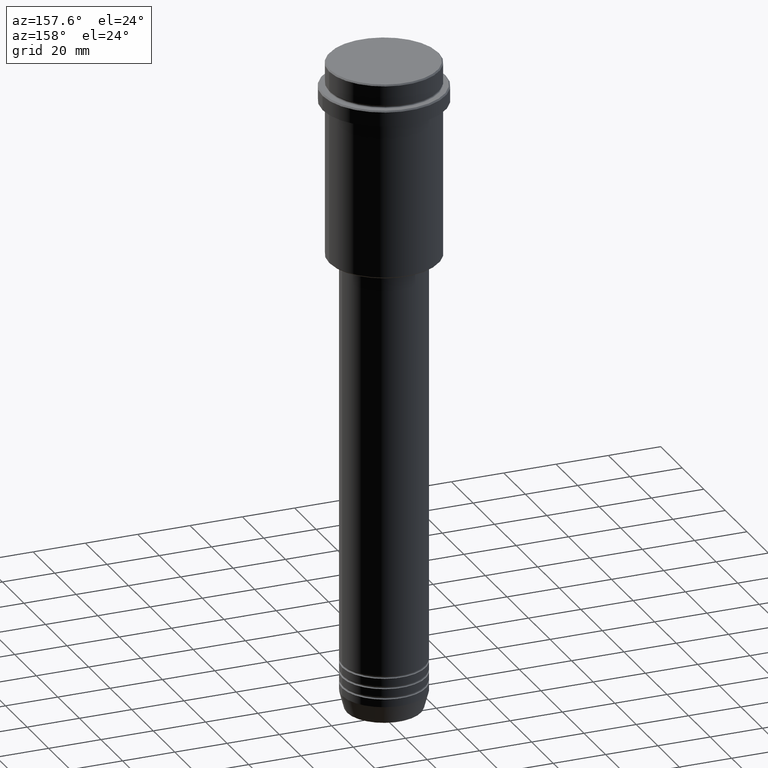
[diagram: clean part render]
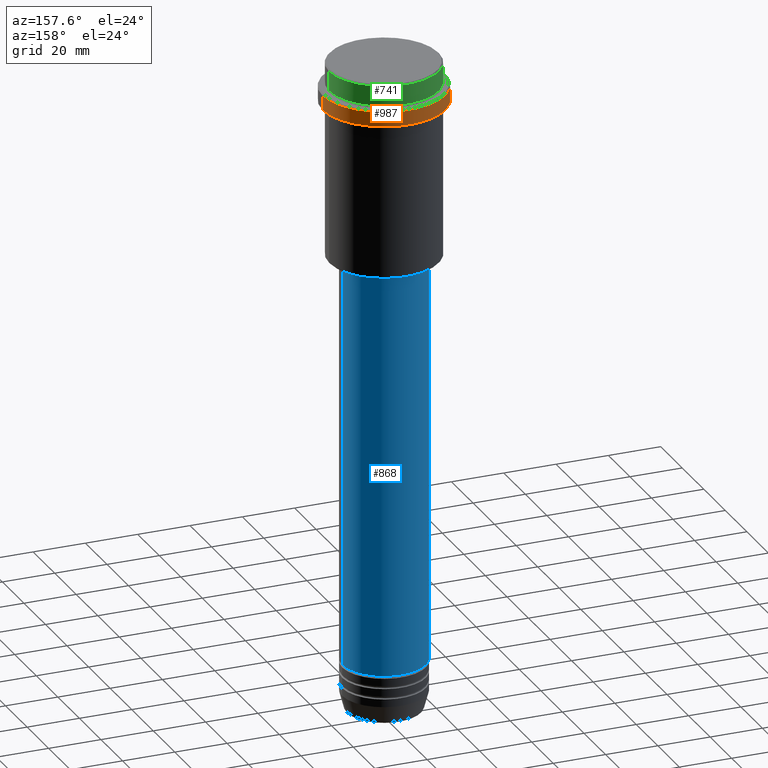
[diagram: same view with three faces highlighted in distinct colors, each labeled with its STEP entity id]
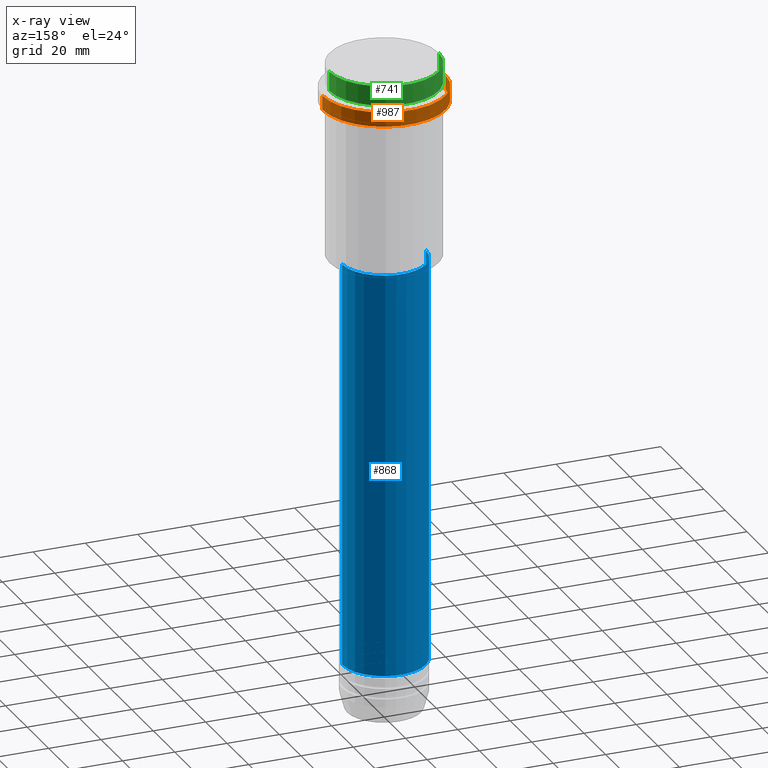
[diagram: x-ray of the same camera — body ghosted, the three highlighted faces saturated]
A machine part, auxiliary view with three faces highlighted in distinct colors.
The next image is the same camera in x-ray (body ghosted, the three faces saturated) — at least one of them is partly hidden behind the body in this view.
Their STEP definitions:

[orange] entity #987 — the highlighted cylindrical surface (partial cylindrical patch) has radius 23.5 mm, axis along (-0, -0, 1).
#10 = VERTEX_POINT ( 'NONE', #852 ) ;
#47 = CARTESIAN_POINT ( 'NONE',  ( 23.50000000000000000, 0.000000000000000000, 0.000000000000000000 ) ) ;
#59 = AXIS2_PLACEMENT_3D ( 'NONE', #1101, #1173, #645 ) ;
#99 = ORIENTED_EDGE ( 'NONE', *, *, #812, .F. ) ;
#108 = CARTESIAN_POINT ( 'NONE',  ( 0.000000000000000000, 0.000000000000000000, -9.499999999999944933 ) ) ;
#115 = ORIENTED_EDGE ( 'NONE', *, *, #252, .T. ) ;
#243 = CARTESIAN_POINT ( 'NONE',  ( -23.50000000000000000, 2.877919977996280320E-15, -9.499999999999944933 ) ) ;
#252 = EDGE_CURVE ( 'NONE', #603, #10, #757, .T. ) ;
#275 = LINE ( 'NONE', #47, #934 ) ;
#309 = CARTESIAN_POINT ( 'NONE',  ( -23.50000000000000000, 2.877919977996280320E-15, 0.000000000000000000 ) ) ;
#334 = LINE ( 'NONE', #309, #822 ) ;
#366 = DIRECTION ( 'NONE',  ( 1.000000000000000000, 0.000000000000000000, 0.000000000000000000 ) ) ;
#373 = CARTESIAN_POINT ( 'NONE',  ( 0.000000000000000000, 0.000000000000000000, -15.00000000000000000 ) ) ;
#438 = DIRECTION ( 'NONE',  ( 1.000000000000000000, 0.000000000000000000, 0.000000000000000000 ) ) ;
#495 = EDGE_CURVE ( 'NONE', #1376, #556, #869, .T. ) ;
#556 = VERTEX_POINT ( 'NONE', #816 ) ;
#603 = VERTEX_POINT ( 'NONE', #243 ) ;
#625 = DIRECTION ( 'NONE',  ( -0.000000000000000000, -0.000000000000000000, 1.000000000000000000 ) ) ;
#645 = DIRECTION ( 'NONE',  ( 1.000000000000000000, 0.000000000000000000, 0.000000000000000000 ) ) ;
#650 = DIRECTION ( 'NONE',  ( -0.000000000000000000, -0.000000000000000000, 1.000000000000000000 ) ) ;
#719 = ORIENTED_EDGE ( 'NONE', *, *, #495, .T. ) ;
#757 = CIRCLE ( 'NONE', #1119, 23.50000000000000000 ) ;
#812 = EDGE_CURVE ( 'NONE', #1376, #10, #275, .T. ) ;
#813 = DIRECTION ( 'NONE',  ( -0.000000000000000000, -0.000000000000000000, 1.000000000000000000 ) ) ;
#816 = CARTESIAN_POINT ( 'NONE',  ( -23.50000000000000711, 2.877919977996281109E-15, -15.00000000000000000 ) ) ;
#822 = VECTOR ( 'NONE', #650, 1000.000000000000000 ) ;
#852 = CARTESIAN_POINT ( 'NONE',  ( 23.50000000000000000, 0.000000000000000000, -9.499999999999944933 ) ) ;
#869 = CIRCLE ( 'NONE', #1046, 23.50000000000000355 ) ;
#934 = VECTOR ( 'NONE', #625, 1000.000000000000000 ) ;
#941 = CARTESIAN_POINT ( 'NONE',  ( 23.50000000000000355, 0.000000000000000000, -15.00000000000000000 ) ) ;
#987 = ADVANCED_FACE ( 'NONE', ( #1072 ), #1293, .T. ) ;
#1012 = EDGE_CURVE ( 'NONE', #556, #603, #334, .T. ) ;
#1046 = AXIS2_PLACEMENT_3D ( 'NONE', #373, #813, #366 ) ;
#1072 = FACE_OUTER_BOUND ( 'NONE', #1325, .T. ) ;
#1074 = DIRECTION ( 'NONE',  ( 0.000000000000000000, 0.000000000000000000, -1.000000000000000000 ) ) ;
#1101 = CARTESIAN_POINT ( 'NONE',  ( 0.000000000000000000, 0.000000000000000000, 0.000000000000000000 ) ) ;
#1119 = AXIS2_PLACEMENT_3D ( 'NONE', #108, #1074, #438 ) ;
#1131 = ORIENTED_EDGE ( 'NONE', *, *, #1012, .T. ) ;
#1173 = DIRECTION ( 'NONE',  ( -0.000000000000000000, -0.000000000000000000, 1.000000000000000000 ) ) ;
#1293 = CYLINDRICAL_SURFACE ( 'NONE', #59, 23.50000000000000000 ) ;
#1325 = EDGE_LOOP ( 'NONE', ( #719, #1131, #115, #99 ) ) ;
#1376 = VERTEX_POINT ( 'NONE', #941 ) ;

[blue] entity #868 — the highlighted cylindrical surface (partial cylindrical patch) has radius 16 mm, axis along (-0, -0, 1).
#21 = AXIS2_PLACEMENT_3D ( 'NONE', #726, #173, #1357 ) ;
#69 = FACE_OUTER_BOUND ( 'NONE', #935, .T. ) ;
#165 = DIRECTION ( 'NONE',  ( -0.000000000000000000, -0.000000000000000000, 1.000000000000000000 ) ) ;
#173 = DIRECTION ( 'NONE',  ( -0.000000000000000000, -0.000000000000000000, 1.000000000000000000 ) ) ;
#231 = CARTESIAN_POINT ( 'NONE',  ( 0.000000000000000000, 0.000000000000000000, -230.9999999999998863 ) ) ;
#273 = CARTESIAN_POINT ( 'NONE',  ( 16.00000000000000000, 0.000000000000000000, -230.9999999999998863 ) ) ;
#285 = DIRECTION ( 'NONE',  ( 1.000000000000000000, 0.000000000000000000, 0.000000000000000000 ) ) ;
#296 = VERTEX_POINT ( 'NONE', #428 ) ;
#300 = ORIENTED_EDGE ( 'NONE', *, *, #1150, .T. ) ;
#339 = CARTESIAN_POINT ( 'NONE',  ( -16.00000000000000000, 1.959434878635765131E-15, -230.9999999999998863 ) ) ;
#352 = CARTESIAN_POINT ( 'NONE',  ( 16.00000000000000000, 0.000000000000000000, 0.000000000000000000 ) ) ;
#371 = AXIS2_PLACEMENT_3D ( 'NONE', #231, #1092, #1192 ) ;
#428 = CARTESIAN_POINT ( 'NONE',  ( 16.00000000000000355, 0.000000000000000000, -76.00000000000001421 ) ) ;
#432 = VECTOR ( 'NONE', #466, 1000.000000000000000 ) ;
#466 = DIRECTION ( 'NONE',  ( -0.000000000000000000, -0.000000000000000000, 1.000000000000000000 ) ) ;
#530 = EDGE_CURVE ( 'NONE', #1255, #296, #905, .T. ) ;
#572 = CARTESIAN_POINT ( 'NONE',  ( -16.00000000000000355, 1.959434878635765526E-15, -76.00000000000001421 ) ) ;
#594 = DIRECTION ( 'NONE',  ( -0.000000000000000000, -0.000000000000000000, 1.000000000000000000 ) ) ;
#706 = EDGE_CURVE ( 'NONE', #1255, #724, #909, .T. ) ;
#724 = VERTEX_POINT ( 'NONE', #339 ) ;
#726 = CARTESIAN_POINT ( 'NONE',  ( 0.000000000000000000, 0.000000000000000000, -76.00000000000001421 ) ) ;
#753 = VERTEX_POINT ( 'NONE', #572 ) ;
#788 = EDGE_CURVE ( 'NONE', #296, #753, #1402, .T. ) ;
#868 = ADVANCED_FACE ( 'NONE', ( #69 ), #1051, .T. ) ;
#870 = AXIS2_PLACEMENT_3D ( 'NONE', #942, #165, #285 ) ;
#897 = ORIENTED_EDGE ( 'NONE', *, *, #530, .F. ) ;
#905 = LINE ( 'NONE', #352, #977 ) ;
#909 = CIRCLE ( 'NONE', #371, 16.00000000000000000 ) ;
#935 = EDGE_LOOP ( 'NONE', ( #1222, #300, #1203, #897 ) ) ;
#942 = CARTESIAN_POINT ( 'NONE',  ( 0.000000000000000000, 0.000000000000000000, 0.000000000000000000 ) ) ;
#977 = VECTOR ( 'NONE', #594, 1000.000000000000000 ) ;
#986 = CARTESIAN_POINT ( 'NONE',  ( -16.00000000000000000, 1.959434878635765131E-15, 0.000000000000000000 ) ) ;
#1051 = CYLINDRICAL_SURFACE ( 'NONE', #870, 16.00000000000000000 ) ;
#1092 = DIRECTION ( 'NONE',  ( -0.000000000000000000, -0.000000000000000000, 1.000000000000000000 ) ) ;
#1150 = EDGE_CURVE ( 'NONE', #724, #753, #1347, .T. ) ;
#1192 = DIRECTION ( 'NONE',  ( 1.000000000000000000, 0.000000000000000000, 0.000000000000000000 ) ) ;
#1203 = ORIENTED_EDGE ( 'NONE', *, *, #788, .F. ) ;
#1222 = ORIENTED_EDGE ( 'NONE', *, *, #706, .T. ) ;
#1255 = VERTEX_POINT ( 'NONE', #273 ) ;
#1347 = LINE ( 'NONE', #986, #432 ) ;
#1357 = DIRECTION ( 'NONE',  ( 1.000000000000000000, 0.000000000000000000, 0.000000000000000000 ) ) ;
#1402 = CIRCLE ( 'NONE', #21, 16.00000000000000355 ) ;

[green] entity #741 — the highlighted cylindrical surface (partial cylindrical patch) has radius 21 mm, axis along (-0, -0, 1).
#1 = DIRECTION ( 'NONE',  ( 0.000000000000000000, 0.000000000000000000, -1.000000000000000000 ) ) ;
#40 = VECTOR ( 'NONE', #901, 1000.000000000000000 ) ;
#71 = EDGE_CURVE ( 'NONE', #1170, #640, #101, .T. ) ;
#100 = EDGE_CURVE ( 'NONE', #520, #1170, #618, .T. ) ;
#101 = LINE ( 'NONE', #1305, #911 ) ;
#113 = LINE ( 'NONE', #679, #40 ) ;
#162 = ORIENTED_EDGE ( 'NONE', *, *, #712, .F. ) ;
#284 = EDGE_CURVE ( 'NONE', #640, #1049, #1141, .T. ) ;
#303 = CARTESIAN_POINT ( 'NONE',  ( 21.00000000000000000, 0.000000000000000000, -0.4999999999999553690 ) ) ;
#320 = AXIS2_PLACEMENT_3D ( 'NONE', #980, #1, #534 ) ;
#393 = DIRECTION ( 'NONE',  ( 1.000000000000000000, 0.000000000000000000, 0.000000000000000000 ) ) ;
#520 = VERTEX_POINT ( 'NONE', #1006 ) ;
#534 = DIRECTION ( 'NONE',  ( 1.000000000000000000, 0.000000000000000000, 0.000000000000000000 ) ) ;
#557 = DIRECTION ( 'NONE',  ( -0.000000000000000000, -0.000000000000000000, 1.000000000000000000 ) ) ;
#566 = CARTESIAN_POINT ( 'NONE',  ( 0.000000000000000000, 0.000000000000000000, 0.000000000000000000 ) ) ;
#597 = ORIENTED_EDGE ( 'NONE', *, *, #71, .T. ) ;
#613 = CARTESIAN_POINT ( 'NONE',  ( 0.000000000000000000, 0.000000000000000000, -7.999999999999998224 ) ) ;
#618 = CIRCLE ( 'NONE', #845, 21.00000000000000000 ) ;
#640 = VERTEX_POINT ( 'NONE', #883 ) ;
#679 = CARTESIAN_POINT ( 'NONE',  ( 21.00000000000000000, 0.000000000000000000, 0.000000000000000000 ) ) ;
#686 = FACE_OUTER_BOUND ( 'NONE', #837, .T. ) ;
#712 = EDGE_CURVE ( 'NONE', #520, #1049, #113, .T. ) ;
#741 = ADVANCED_FACE ( 'NONE', ( #686 ), #1007, .T. ) ;
#837 = EDGE_LOOP ( 'NONE', ( #1176, #597, #1380, #162 ) ) ;
#845 = AXIS2_PLACEMENT_3D ( 'NONE', #613, #1029, #393 ) ;
#883 = CARTESIAN_POINT ( 'NONE',  ( -21.00000000000000000, 2.571758278209441661E-15, -0.4999999999999553690 ) ) ;
#901 = DIRECTION ( 'NONE',  ( -0.000000000000000000, -0.000000000000000000, 1.000000000000000000 ) ) ;
#911 = VECTOR ( 'NONE', #557, 1000.000000000000000 ) ;
#980 = CARTESIAN_POINT ( 'NONE',  ( 0.000000000000000000, 0.000000000000000000, -0.4999999999999553690 ) ) ;
#991 = DIRECTION ( 'NONE',  ( -0.000000000000000000, -0.000000000000000000, 1.000000000000000000 ) ) ;
#1006 = CARTESIAN_POINT ( 'NONE',  ( 21.00000000000000000, 0.000000000000000000, -7.999999999999998224 ) ) ;
#1007 = CYLINDRICAL_SURFACE ( 'NONE', #1122, 21.00000000000000000 ) ;
#1029 = DIRECTION ( 'NONE',  ( -0.000000000000000000, -0.000000000000000000, 1.000000000000000000 ) ) ;
#1049 = VERTEX_POINT ( 'NONE', #303 ) ;
#1122 = AXIS2_PLACEMENT_3D ( 'NONE', #566, #991, #1410 ) ;
#1141 = CIRCLE ( 'NONE', #320, 21.00000000000000000 ) ;
#1170 = VERTEX_POINT ( 'NONE', #1223 ) ;
#1176 = ORIENTED_EDGE ( 'NONE', *, *, #100, .T. ) ;
#1223 = CARTESIAN_POINT ( 'NONE',  ( -21.00000000000000000, 2.571758278209441661E-15, -7.999999999999998224 ) ) ;
#1305 = CARTESIAN_POINT ( 'NONE',  ( -21.00000000000000000, 2.571758278209441661E-15, 0.000000000000000000 ) ) ;
#1380 = ORIENTED_EDGE ( 'NONE', *, *, #284, .T. ) ;
#1410 = DIRECTION ( 'NONE',  ( 1.000000000000000000, 0.000000000000000000, 0.000000000000000000 ) ) ;